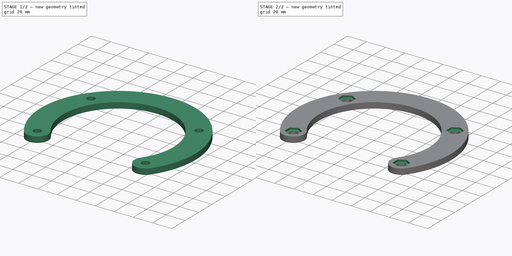
[diagram: build sequence overview — one tinted view per stage of 2, left to right]
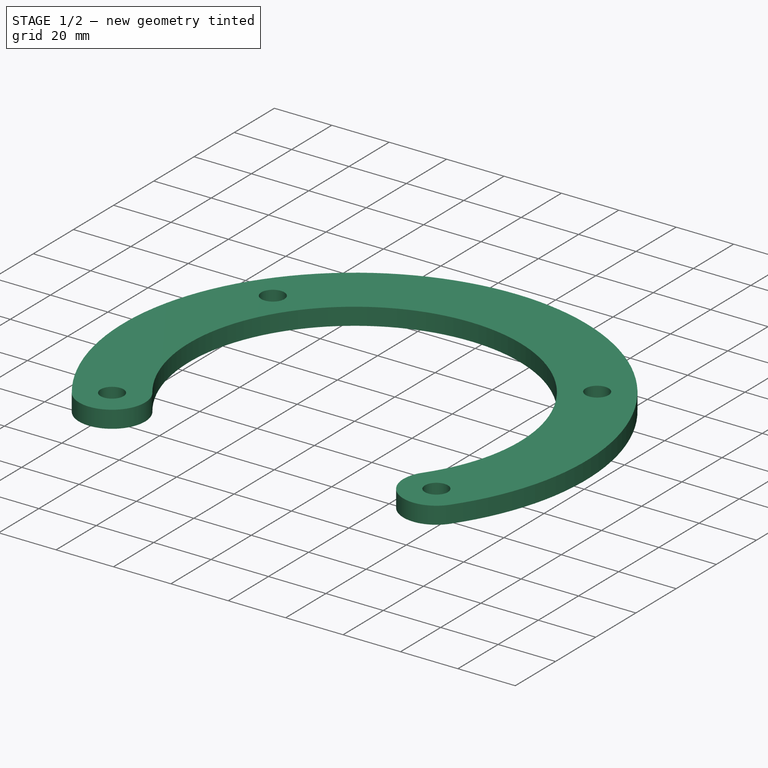
[diagram: stage 1 of 2 — iso view after this stage's code; geometry added in this stage tinted green]
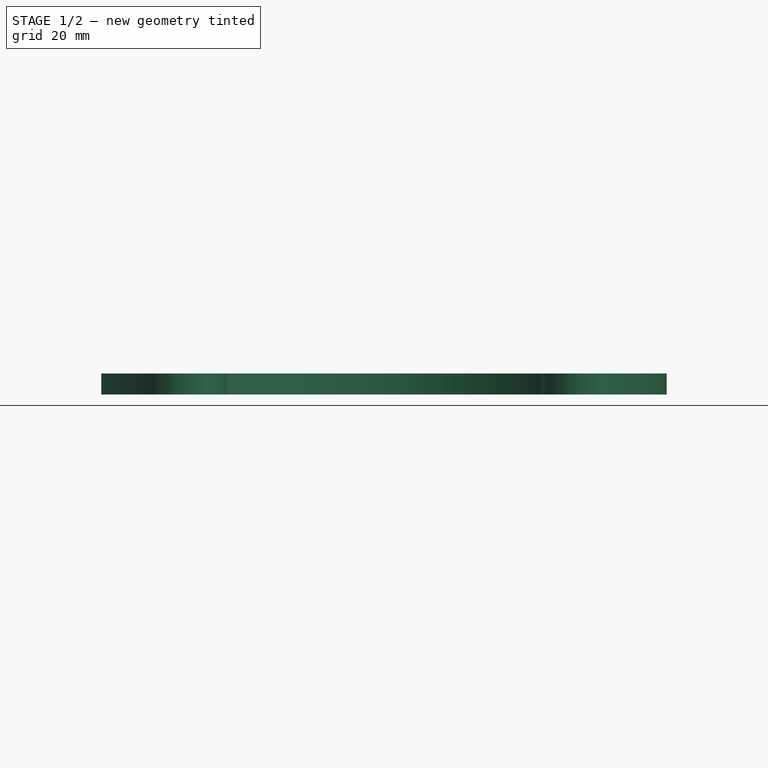
[diagram: stage 1 of 2 — front view after this stage's code; geometry added in this stage tinted green]
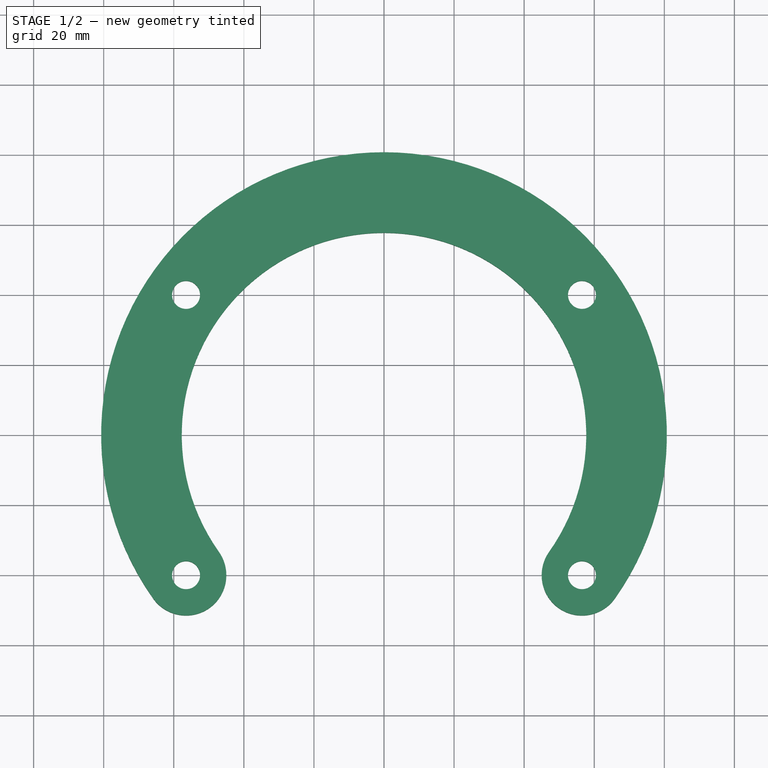
[diagram: stage 1 of 2 — top view after this stage's code; geometry added in this stage tinted green]
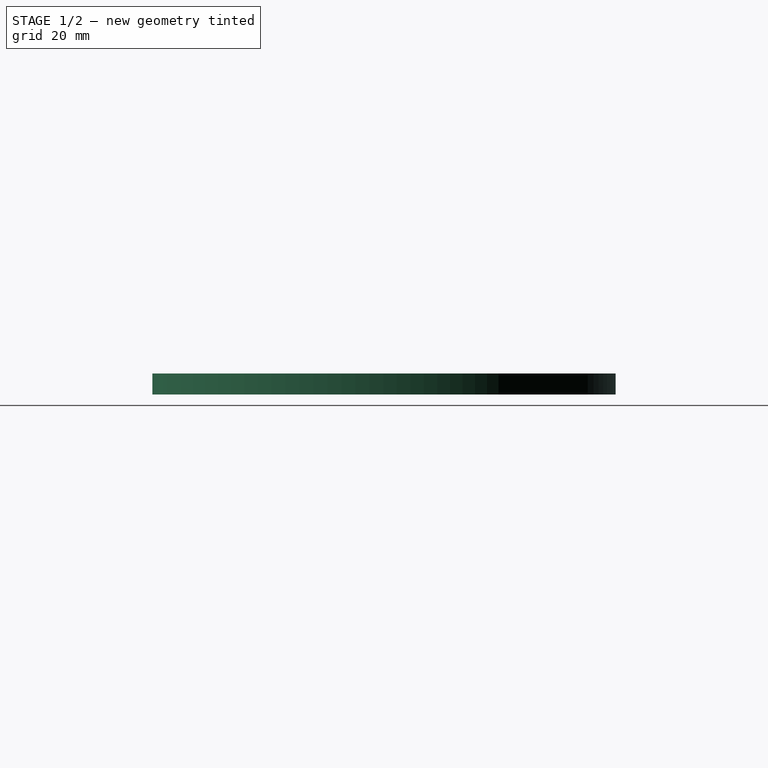
[diagram: stage 1 of 2 — right view after this stage's code; geometry added in this stage tinted green]
FCSTD DOCUMENT  (FreeCAD 0.19R24291 (Git))
Label: Надстаканник 2
License: All rights reserved
LicenseURL: http://en.wikipedia.org/wiki/All_rights_reserved
objects: Sketcher::SketchObject×2, PartDesign::Pad×1, PartDesign::Pocket×1, PartDesign::Body×1
note: 7 computed .brp shape members not serialized (recipe doc carries the construction recipe); baked Part::Feature solids carry a one-line shape summary decoded from their .brp

FEATURE [Sketcher::SketchObject] Sketch
  FullyConstrained = true
  MapMode = 5
  Support = -> [XY_Plane]
  sketch-geometry (11):
    g0: Circle CenterX=56.5 CenterY=0 CenterZ=0 NormalX=0 NormalY=0 NormalZ=1 AngleXU=0 Radius=4
    g1: Circle CenterX=-56.5 CenterY=0 CenterZ=0 NormalX=0 NormalY=0 NormalZ=1 AngleXU=0 Radius=4
    g2: Circle CenterX=-56.5 CenterY=-80 CenterZ=0 NormalX=0 NormalY=0 NormalZ=1 AngleXU=0 Radius=4
    g3: Circle CenterX=56.5 CenterY=-80 CenterZ=0 NormalX=0 NormalY=0 NormalZ=1 AngleXU=0 Radius=4
    g4: ArcOfCircle CenterX=56.5 CenterY=-80 CenterZ=0 NormalX=0 NormalY=0 NormalZ=1 AngleXU=0 Radius=11.5 StartAngle=2.52554 EndAngle=5.66491
    g5: ArcOfCircle CenterX=-56.5 CenterY=-80 CenterZ=0 NormalX=0 NormalY=0 NormalZ=1 AngleXU=0 Radius=11.5 StartAngle=3.75542 EndAngle=6.89924
    g6: ArcOfCircle CenterX=0 CenterY=-40 CenterZ=0 NormalX=0 NormalY=0 NormalZ=1 AngleXU=0 Radius=57.7261 StartAngle=5.66713 EndAngle=10.0408
    g7: ArcOfCircle CenterX=0 CenterY=-40 CenterZ=0 NormalX=0 NormalY=0 NormalZ=1 AngleXU=0 Radius=80.7261 StartAngle=5.66682 EndAngle=10.0405
    g8: LineSegment StartX=56.5 StartY=0 StartZ=0 EndX=47.1141 EndY=-6.64489 EndZ=0
    g9: LineSegment StartX=56.5 StartY=0 StartZ=0 EndX=65.8859 EndY=6.64489 EndZ=0
    g10: LineSegment StartX=0 StartY=0 StartZ=0 EndX=0 EndY=17.7261 EndZ=0
  constraints (35):
    c: PointOnObject(g0,g-1)
    c: PointOnObject(g1,g-1)
    c: Horizontal(g3,g2)
    c: Vertical(g3,g0)
    c: Vertical(g2,g1)
    c: Distance(g3,g2) = 113
    c: Distance(g1,g2) = 80
    c: Equal(g3,g0)
    c: Equal(g0,g1)
    c: Equal(g1,g2)
    c: Coincident(g4,g3)
    c: Coincident(g5,g2)
    c: Equal(g4,g5)
    c: Diameter(g4) = 23
    c: Coincident(g6,g4)
    c: Coincident(g6,g5)
    c: Coincident(g7,g6)
    c: Coincident(g7,g4)
    c: Coincident(g7,g5)
    c: PointOnObject(g6,g-2)
    c: Coincident(g8,g0)
    c: PointOnObject(g8,g6)
    c: Coincident(g9,g0)
    c: PointOnObject(g9,g7)
    c: Equal(g9,g8)
    c: Perpendicular(g6,g8)
    c: Perpendicular(g7,g9)
    c: Distance(g9,g8) = 23
    c: Coincident(g10,g-1)
    c: PointOnObject(g10,g6)
    c: Vertical(g10)
    c: Distance(g10) = 17.7261
    c: Diameter(g3) = 8
    c: Tangent(g4,g6)
    c: Tangent(g5,g6)
FEATURE [PartDesign::Pad] Pad
  Direction = (1,1,1)
  Length = 6
  Length2 = 100
  Profile = -> Sketch
  Type = 0
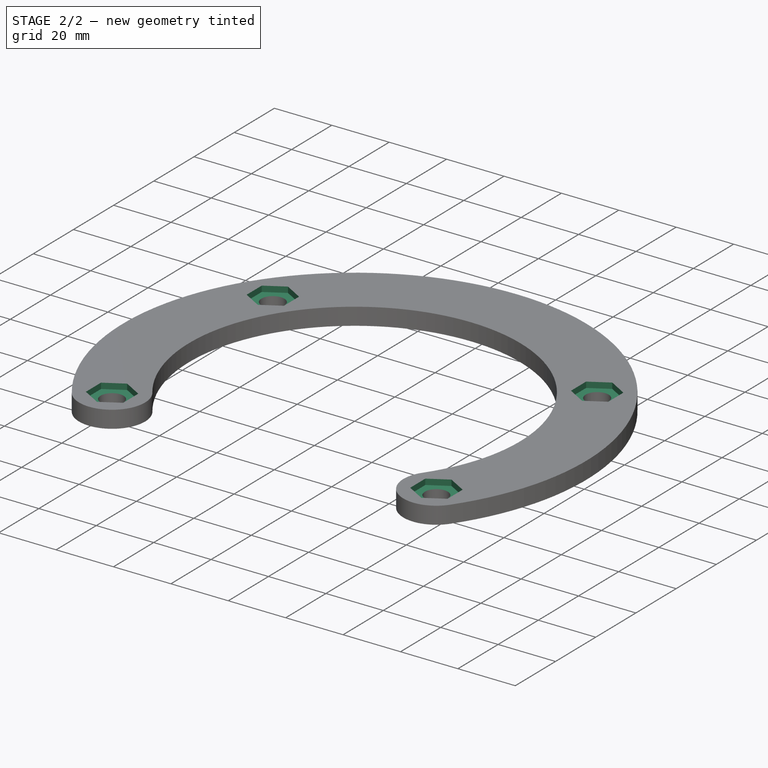
[diagram: stage 2 of 2 — iso view after this stage's code; geometry added in this stage tinted green]
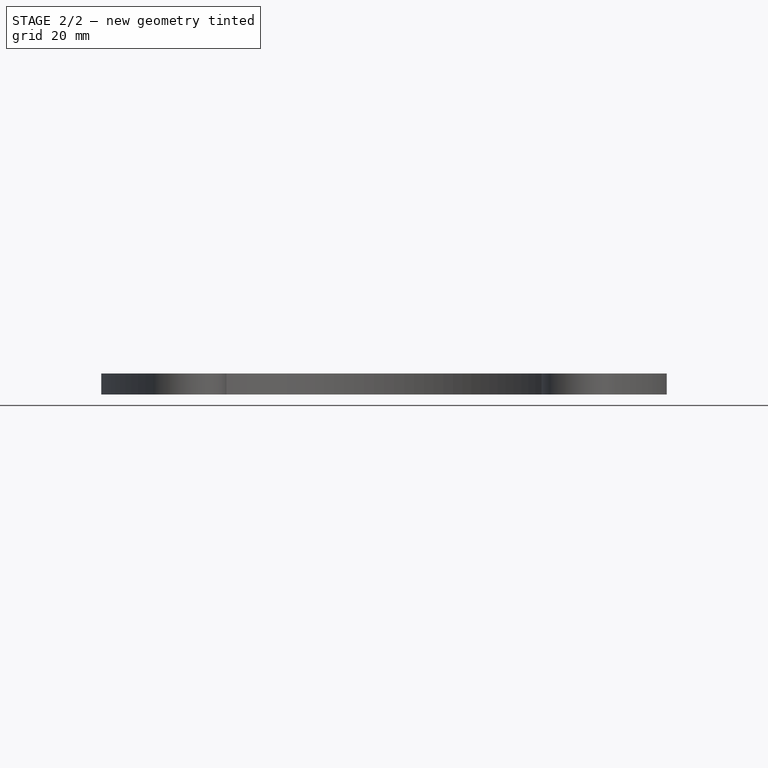
[diagram: stage 2 of 2 — front view after this stage's code; geometry added in this stage tinted green]
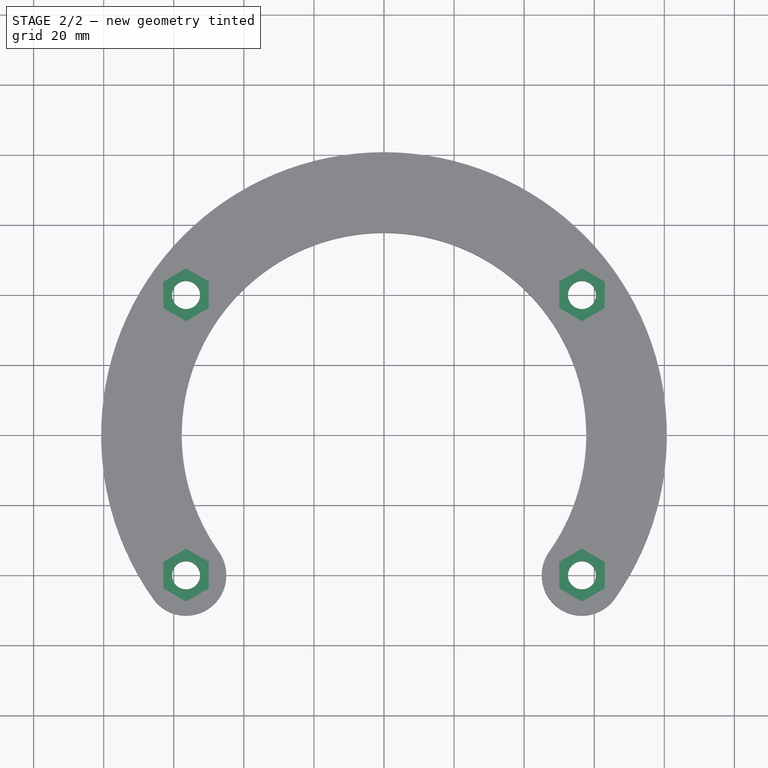
[diagram: stage 2 of 2 — top view after this stage's code; geometry added in this stage tinted green]
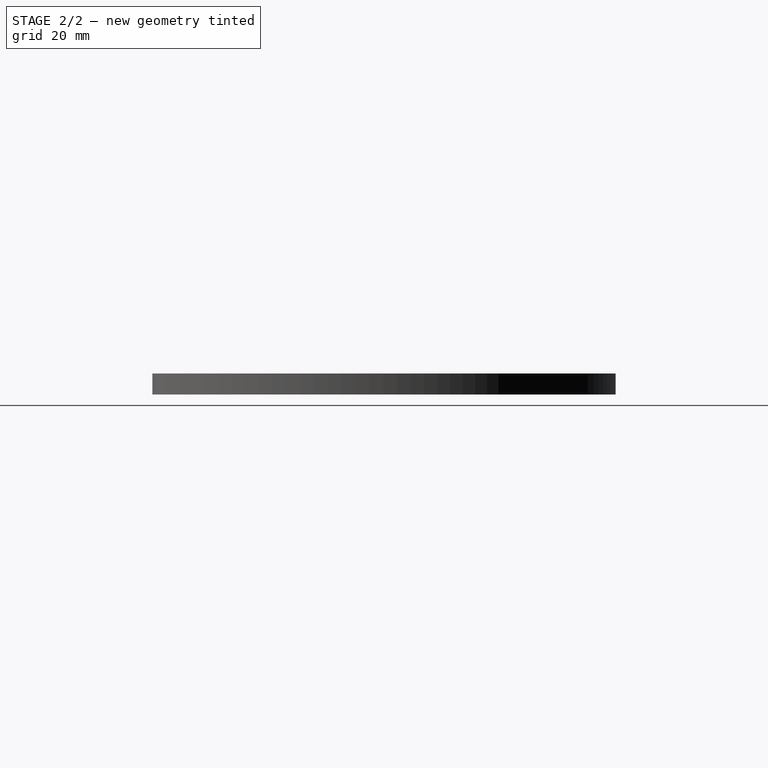
[diagram: stage 2 of 2 — right view after this stage's code; geometry added in this stage tinted green]
FEATURE [Sketcher::SketchObject] Sketch001
  ExternalGeometry = -> [Pad]
  FullyConstrained = false
  MapMode = 5
  Placement = pos=(0,0,6) rot=(0,0,1;0rad)
  Support = -> [Pad]
  sketch-geometry (34):
    g0: LineSegment StartX=-171.808 StartY=-1.77652 StartZ=0 EndX=-171.808 EndY=-1.77652 EndZ=0
    g1: LineSegment StartX=-171.808 StartY=-1.77652 StartZ=0 EndX=-171.808 EndY=-1.77652 EndZ=0
    g2: LineSegment StartX=-171.808 StartY=-1.77652 StartZ=0 EndX=-171.808 EndY=-1.77652 EndZ=0
    g3: LineSegment StartX=-171.808 StartY=-1.77652 StartZ=0 EndX=-171.808 EndY=-1.77652 EndZ=0
    g4: LineSegment StartX=-171.808 StartY=-1.77652 StartZ=0 EndX=-171.808 EndY=-1.77652 EndZ=0
    g5: LineSegment StartX=-171.808 StartY=-1.77652 StartZ=0 EndX=-171.808 EndY=-1.77652 EndZ=0
    g6: LineSegment StartX=63 StartY=3.75278 StartZ=0 EndX=56.5 EndY=7.50555 EndZ=0
    g7: LineSegment StartX=56.5 StartY=7.50555 StartZ=0 EndX=50 EndY=3.75278 EndZ=0
    g8: LineSegment StartX=50 StartY=3.75278 StartZ=0 EndX=50 EndY=-3.75278 EndZ=0
    g9: LineSegment StartX=50 StartY=-3.75278 StartZ=0 EndX=56.5 EndY=-7.50555 EndZ=0
    g10: LineSegment StartX=56.5 StartY=-7.50555 StartZ=0 EndX=63 EndY=-3.75278 EndZ=0
    g11: LineSegment StartX=63 StartY=-3.75278 StartZ=0 EndX=63 EndY=3.75278 EndZ=0
    g12: Circle CenterX=56.5 CenterY=0 CenterZ=0 NormalX=0 NormalY=0 NormalZ=1 AngleXU=0 Radius=7.50555
    g13: LineSegment StartX=63 StartY=-76.2472 StartZ=0 EndX=56.5 EndY=-72.4944 EndZ=0
    g14: LineSegment StartX=56.5 StartY=-72.4944 StartZ=0 EndX=50 EndY=-76.2472 EndZ=0
    g15: LineSegment StartX=50 StartY=-76.2472 StartZ=0 EndX=50 EndY=-83.7528 EndZ=0
    g16: LineSegment StartX=50 StartY=-83.7528 StartZ=0 EndX=56.5 EndY=-87.5056 EndZ=0
    g17: LineSegment StartX=56.5 StartY=-87.5056 StartZ=0 EndX=63 EndY=-83.7528 EndZ=0
    g18: LineSegment StartX=63 StartY=-83.7528 StartZ=0 EndX=63 EndY=-76.2472 EndZ=0
    g19: Circle CenterX=56.5 CenterY=-80 CenterZ=0 NormalX=0 NormalY=0 NormalZ=1 AngleXU=0 Radius=7.50555
    g20: LineSegment StartX=-50 StartY=-76.2472 StartZ=0 EndX=-56.5 EndY=-72.4944 EndZ=0
    g21: LineSegment StartX=-56.5 StartY=-72.4944 StartZ=0 EndX=-63 EndY=-76.2472 EndZ=0
    g22: LineSegment StartX=-63 StartY=-76.2472 StartZ=0 EndX=-63 EndY=-83.7528 EndZ=0
    g23: LineSegment StartX=-63 StartY=-83.7528 StartZ=0 EndX=-56.5 EndY=-87.5056 EndZ=0
    g24: LineSegment StartX=-56.5 StartY=-87.5056 StartZ=0 EndX=-50 EndY=-83.7528 EndZ=0
    g25: LineSegment StartX=-50 StartY=-83.7528 StartZ=0 EndX=-50 EndY=-76.2472 EndZ=0
    g26: Circle CenterX=-56.5 CenterY=-80 CenterZ=0 NormalX=0 NormalY=0 NormalZ=1 AngleXU=0 Radius=7.50555
    g27: LineSegment StartX=-50 StartY=3.75278 StartZ=0 EndX=-56.5 EndY=7.50555 EndZ=0
    g28: LineSegment StartX=-56.5 StartY=7.50555 StartZ=0 EndX=-63 EndY=3.75278 EndZ=0
    g29: LineSegment StartX=-63 StartY=3.75278 StartZ=0 EndX=-63 EndY=-3.75278 EndZ=0
    g30: LineSegment StartX=-63 StartY=-3.75278 StartZ=0 EndX=-56.5 EndY=-7.50555 EndZ=0
    g31: LineSegment StartX=-56.5 StartY=-7.50555 StartZ=0 EndX=-50 EndY=-3.75278 EndZ=0
    g32: LineSegment StartX=-50 StartY=-3.75278 StartZ=0 EndX=-50 EndY=3.75278 EndZ=0
    g33: Circle CenterX=-56.5 CenterY=0 CenterZ=0 NormalX=0 NormalY=0 NormalZ=1 AngleXU=0 Radius=7.50555
  constraints (72):
    c: Coincident(g0,g1)
    c: Coincident(g1,g2)
    c: Coincident(g2,g3)
    c: Coincident(g3,g4)
    c: Coincident(g4,g5)
    c: Coincident(g5,g0)
    c: Equal(g0, g1-g5) x5
    c: Vertical(g5)
    c: Coincident(g6,g7)
    c: Coincident(g7,g8)
    c: Coincident(g8,g9)
    c: Coincident(g9,g10)
    c: Coincident(g10,g11)
    c: Coincident(g11,g6)
    c: Equal(g6, g7-g11) x5
    c: PointOnObject(g6,g12)
    c: PointOnObject(g7,g12)
    c: PointOnObject(g8,g12)
    c: PointOnObject(g9,g12)
    c: PointOnObject(g10,g12)
    c: PointOnObject(g11,g12)
    c: Coincident(g12,g-3)
    c: Coincident(g13,g14)
    c: Coincident(g14,g15)
    c: Coincident(g15,g16)
    c: Coincident(g16,g17)
    c: Coincident(g17,g18)
    c: Coincident(g18,g13)
    c: Equal(g13, g14-g18) x5
    c: PointOnObject(g13,g19)
    c: PointOnObject(g14,g19)
    c: PointOnObject(g15,g19)
    c: PointOnObject(g16,g19)
    c: PointOnObject(g17,g19)
    c: PointOnObject(g18,g19)
    c: Coincident(g19,g-4)
    c: Coincident(g20,g21)
    c: Coincident(g21,g22)
    c: Coincident(g22,g23)
    c: Coincident(g23,g24)
    c: Coincident(g24,g25)
    c: Coincident(g25,g20)
    c: Equal(g20, g21-g25) x5
    c: PointOnObject(g20,g26)
    c: PointOnObject(g21,g26)
    c: PointOnObject(g22,g26)
    c: PointOnObject(g23,g26)
    c: PointOnObject(g24,g26)
    c: PointOnObject(g25,g26)
    c: Coincident(g26,g-5)
    c: Coincident(g27,g28)
    c: Coincident(g28,g29)
    c: Coincident(g29,g30)
    c: Coincident(g30,g31)
    c: Coincident(g31,g32)
    c: Coincident(g32,g27)
    c: Equal(g27, g28-g32) x5
    c: PointOnObject(g27,g33)
    c: PointOnObject(g28,g33)
    c: PointOnObject(g29,g33)
    c: PointOnObject(g30,g33)
    c: PointOnObject(g31,g33)
    c: PointOnObject(g32,g33)
    c: Coincident(g33,g-6)
    c: Equal(g19,g12)
    c: Equal(g12,g26)
    c: Equal(g26,g33)
    c: Vertical(g18)
    c: Vertical(g11)
    c: Vertical(g32)
    c: Vertical(g25)
    c: Distance(g15,g17) = 13
FEATURE [PartDesign::Pocket] Pocket
  BaseFeature = -> Pad
  Length = 2
  Length2 = 100
  Profile = -> Sketch001
  Type = 0
FEATURE [PartDesign::Body] Body
  Group = -> [Sketch,Pad,Sketch001,Pocket]
  Origin = -> Origin
  Tip = -> Pocket
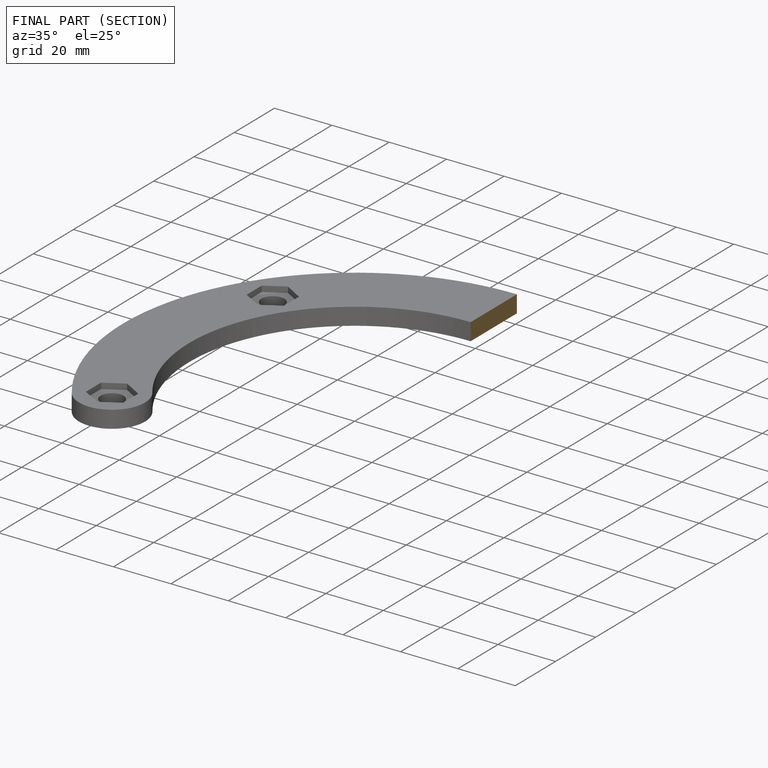
[diagram: finished part — half-section view (interior)]
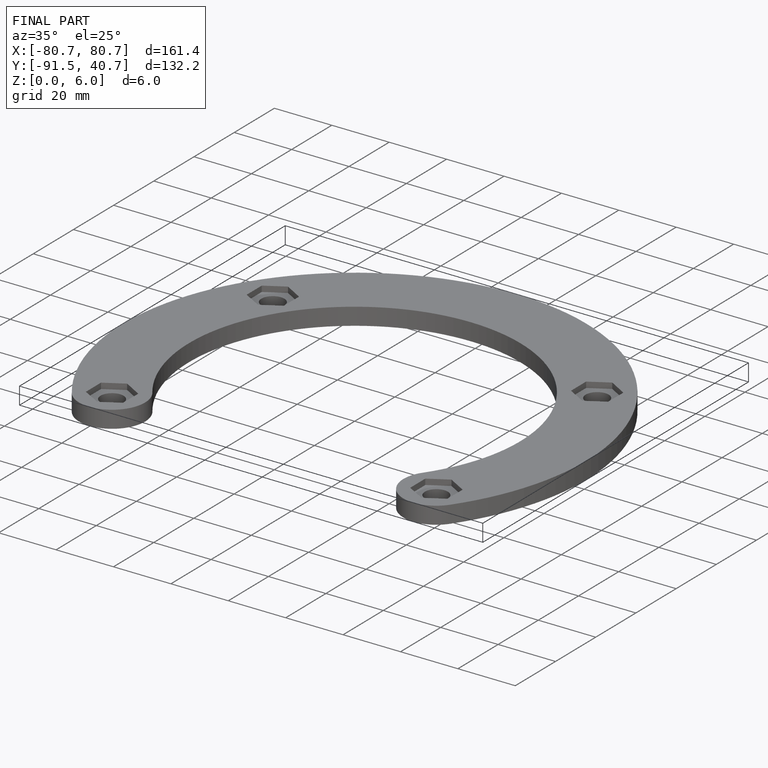
[diagram: finished part — iso view with bounding-box wireframe]
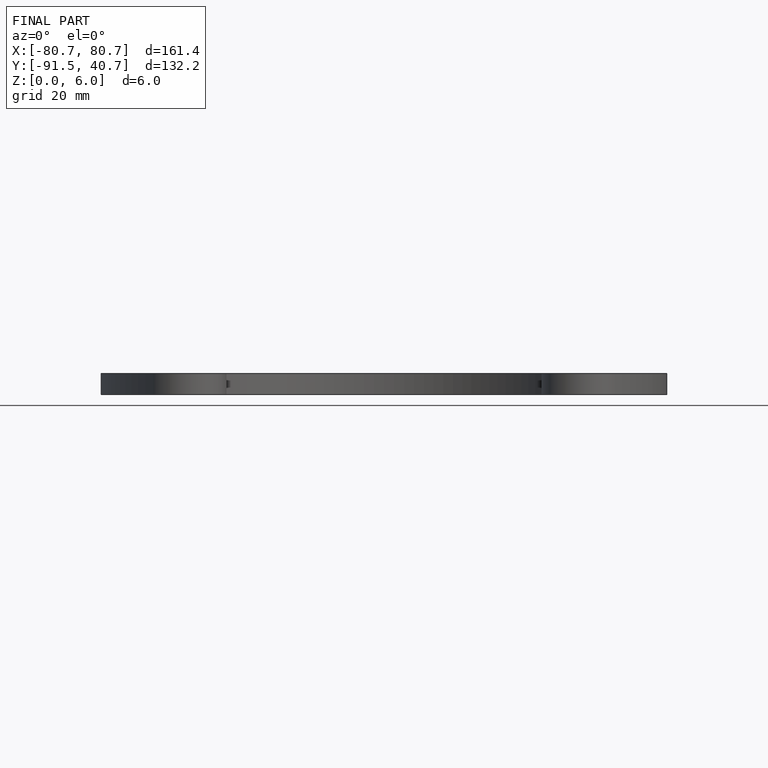
[diagram: finished part — front view with bounding-box wireframe]
